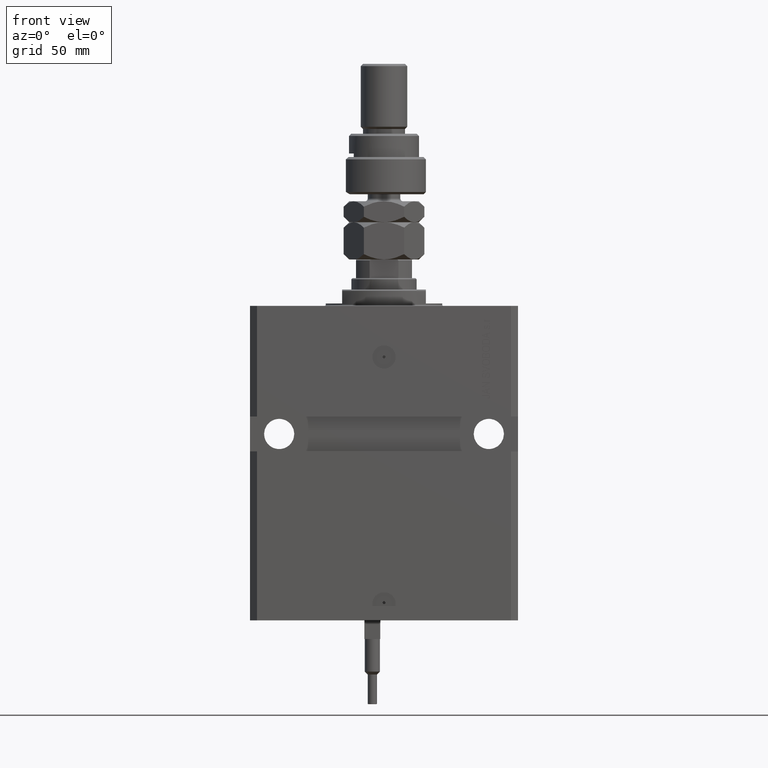
[diagram: clean part render]
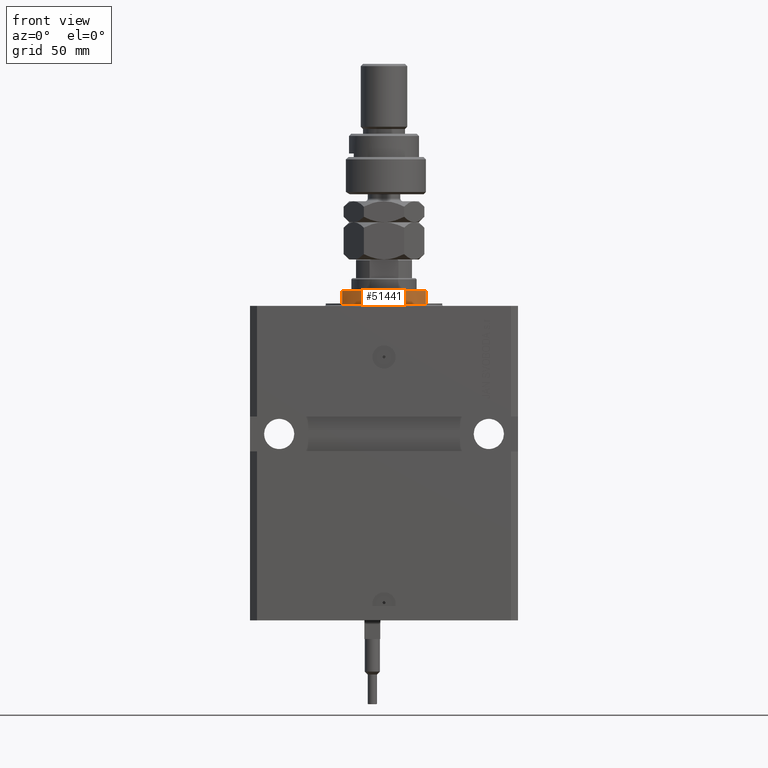
[diagram: same view with one face highlighted and labeled with its STEP entity id]
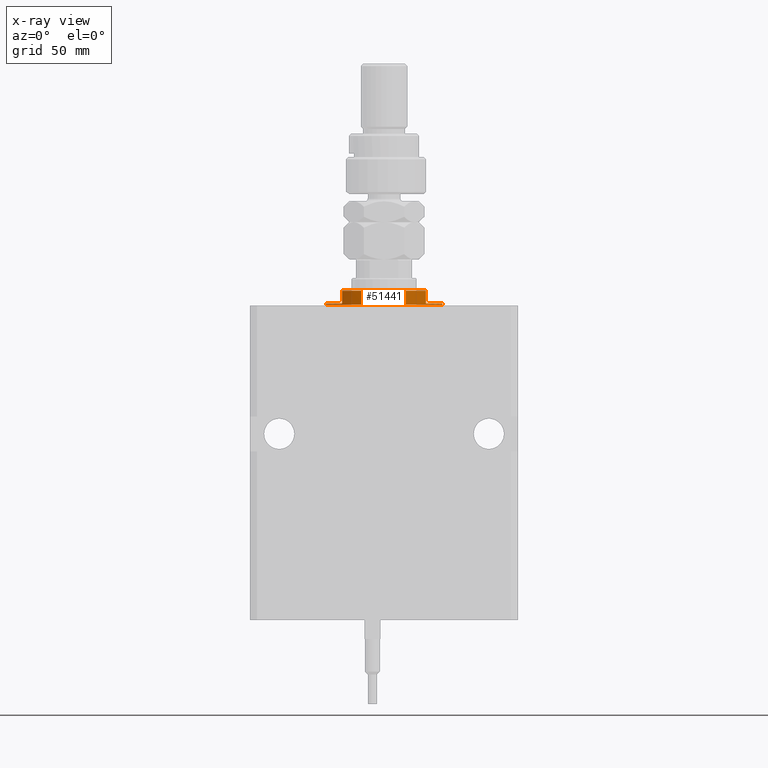
[diagram: x-ray of the same camera — body ghosted, the highlighted face saturated]
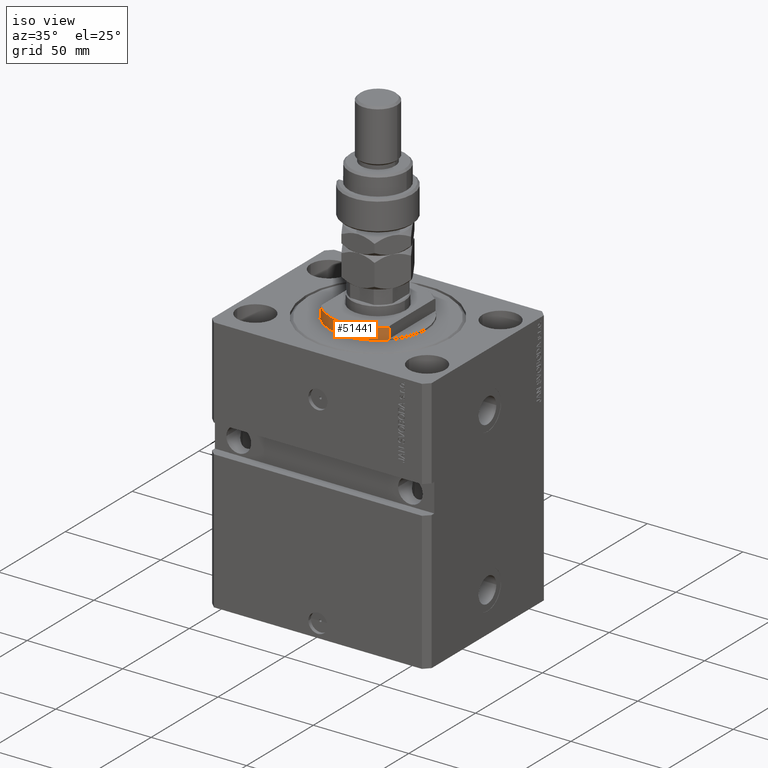
[diagram: same view with one face highlighted and labeled with its STEP entity id]
A machine part, front view. The second image highlights one B-rep face of the part: STEP entity #51441.
The next image is the same camera in x-ray: the body ghosted, the highlighted face saturated — about 0% of this face is hidden behind the body in this view.
A second angle (iso view) of the same face is appended — the face is thin or edge-on in the first view.
In plain terms, the highlighted cylindrical surface (partial cylindrical patch) has radius 25 mm, axis along (0, 0, -1).
Its self-contained STEP definition (entity closure, byte-faithful):
#1 = DIRECTION ( 'NONE',  ( -0.000000000000000000, -0.000000000000000000, 1.000000000000000000 ) ) ;
#267 = AXIS2_PLACEMENT_3D ( 'NONE', #8939, #33567, #25113 ) ;
#513 = LINE ( 'NONE', #39951, #21697 ) ;
#1359 = LINE ( 'NONE', #12744, #47036 ) ;
#4770 = CIRCLE ( 'NONE', #44500, 25.00000000000000000 ) ;
#5127 = FACE_OUTER_BOUND ( 'NONE', #33872, .T. ) ;
#5412 = ORIENTED_EDGE ( 'NONE', *, *, #36118, .F. ) ;
#5709 = CARTESIAN_POINT ( 'NONE',  ( 18.00000000000000000, -17.34935157289747920, -7.000000000000000000 ) ) ;
#6168 = EDGE_CURVE ( 'NONE', #50250, #43555, #513, .T. ) ;
#8939 = CARTESIAN_POINT ( 'NONE',  ( 0.000000000000000000, 0.000000000000000000, -0.4999999999999995559 ) ) ;
#9646 = AXIS2_PLACEMENT_3D ( 'NONE', #28460, #49052, #12559 ) ;
#11123 = CIRCLE ( 'NONE', #50811, 25.00000000000000000 ) ;
#12031 = CARTESIAN_POINT ( 'NONE',  ( 25.00000000000000000, 0.000000000000000000, -0.4999999999999995559 ) ) ;
#12559 = DIRECTION ( 'NONE',  ( 1.000000000000000000, 0.000000000000000000, 0.000000000000000000 ) ) ;
#12744 = CARTESIAN_POINT ( 'NONE',  ( -18.00000000000000000, -17.34935157289747920, -7.000000000000000000 ) ) ;
#13153 = VERTEX_POINT ( 'NONE', #27583 ) ;
#13424 = VECTOR ( 'NONE', #17882, 1000.000000000000000 ) ;
#13708 = VERTEX_POINT ( 'NONE', #18921 ) ;
#13859 = CARTESIAN_POINT ( 'NONE',  ( -18.00000000000000000, -17.34935157289747920, -1.000000000000000000 ) ) ;
#14608 = CIRCLE ( 'NONE', #267, 25.00000000000000000 ) ;
#15237 = ORIENTED_EDGE ( 'NONE', *, *, #24944, .F. ) ;
#16981 = CARTESIAN_POINT ( 'NONE',  ( 0.000000000000000000, 0.000000000000000000, -6.499999999999971578 ) ) ;
#17402 = VECTOR ( 'NONE', #41469, 1000.000000000000000 ) ;
#17882 = DIRECTION ( 'NONE',  ( 0.000000000000000000, 0.000000000000000000, -1.000000000000000000 ) ) ;
#18197 = ORIENTED_EDGE ( 'NONE', *, *, #34204, .F. ) ;
#18921 = CARTESIAN_POINT ( 'NONE',  ( 18.00000000000000000, -17.34935157289747920, -1.000000000000000000 ) ) ;
#20874 = CARTESIAN_POINT ( 'NONE',  ( -25.00000000000000000, 3.061616997868383043E-15, -7.000000000000000000 ) ) ;
#21076 = AXIS2_PLACEMENT_3D ( 'NONE', #51105, #42655, #50838 ) ;
#21697 = VECTOR ( 'NONE', #1, 1000.000000000000000 ) ;
#24868 = ORIENTED_EDGE ( 'NONE', *, *, #6168, .T. ) ;
#24944 = EDGE_CURVE ( 'NONE', #43477, #13153, #41218, .T. ) ;
#25113 = DIRECTION ( 'NONE',  ( 1.000000000000000000, 0.000000000000000000, 0.000000000000000000 ) ) ;
#27452 = VERTEX_POINT ( 'NONE', #13859 ) ;
#27583 = CARTESIAN_POINT ( 'NONE',  ( -25.00000000000000000, 3.061616997868383043E-15, -0.4999999999999995559 ) ) ;
#27682 = ORIENTED_EDGE ( 'NONE', *, *, #29346, .F. ) ;
#28460 = CARTESIAN_POINT ( 'NONE',  ( 0.000000000000000000, 0.000000000000000000, -7.000000000000000000 ) ) ;
#29346 = EDGE_CURVE ( 'NONE', #50250, #13708, #4770, .T. ) ;
#29413 = EDGE_CURVE ( 'NONE', #27452, #49028, #1359, .T. ) ;
#30136 = DIRECTION ( 'NONE',  ( 0.000000000000000000, 0.000000000000000000, 1.000000000000000000 ) ) ;
#30330 = DIRECTION ( 'NONE',  ( 0.000000000000000000, 0.000000000000000000, -1.000000000000000000 ) ) ;
#33567 = DIRECTION ( 'NONE',  ( -0.000000000000000000, -0.000000000000000000, -1.000000000000000000 ) ) ;
#33872 = EDGE_LOOP ( 'NONE', ( #15237, #5412, #48184, #45707, #18197, #27682, #24868, #45360 ) ) ;
#34204 = EDGE_CURVE ( 'NONE', #13708, #35175, #49889, .T. ) ;
#34564 = DIRECTION ( 'NONE',  ( -1.000000000000000000, 0.000000000000000000, 0.000000000000000000 ) ) ;
#35175 = VERTEX_POINT ( 'NONE', #49467 ) ;
#36118 = EDGE_CURVE ( 'NONE', #27452, #43477, #43036, .T. ) ;
#39860 = CARTESIAN_POINT ( 'NONE',  ( -18.00000000000000000, -17.34935157289747920, -6.499999999999969802 ) ) ;
#39951 = CARTESIAN_POINT ( 'NONE',  ( 25.00000000000000000, 0.000000000000000000, -7.000000000000000000 ) ) ;
#41218 = LINE ( 'NONE', #20874, #17402 ) ;
#41387 = CYLINDRICAL_SURFACE ( 'NONE', #9646, 25.00000000000000000 ) ;
#41469 = DIRECTION ( 'NONE',  ( -0.000000000000000000, -0.000000000000000000, 1.000000000000000000 ) ) ;
#42655 = DIRECTION ( 'NONE',  ( 0.000000000000000000, 0.000000000000000000, -1.000000000000000000 ) ) ;
#42930 = EDGE_CURVE ( 'NONE', #49028, #35175, #11123, .T. ) ;
#43010 = CARTESIAN_POINT ( 'NONE',  ( 0.000000000000000000, 0.000000000000000000, -1.000000000000000000 ) ) ;
#43036 = CIRCLE ( 'NONE', #21076, 25.00000000000000000 ) ;
#43477 = VERTEX_POINT ( 'NONE', #47492 ) ;
#43555 = VERTEX_POINT ( 'NONE', #12031 ) ;
#44500 = AXIS2_PLACEMENT_3D ( 'NONE', #43010, #30330, #34564 ) ;
#45017 = DIRECTION ( 'NONE',  ( 0.000000000000000000, 0.000000000000000000, -1.000000000000000000 ) ) ;
#45360 = ORIENTED_EDGE ( 'NONE', *, *, #48865, .T. ) ;
#45707 = ORIENTED_EDGE ( 'NONE', *, *, #42930, .T. ) ;
#46255 = DIRECTION ( 'NONE',  ( -1.000000000000000000, 0.000000000000000000, 0.000000000000000000 ) ) ;
#47036 = VECTOR ( 'NONE', #45017, 1000.000000000000000 ) ;
#47492 = CARTESIAN_POINT ( 'NONE',  ( -25.00000000000000000, 3.061616997868383043E-15, -1.000000000000000000 ) ) ;
#48184 = ORIENTED_EDGE ( 'NONE', *, *, #29413, .T. ) ;
#48865 = EDGE_CURVE ( 'NONE', #43555, #13153, #14608, .T. ) ;
#49028 = VERTEX_POINT ( 'NONE', #39860 ) ;
#49052 = DIRECTION ( 'NONE',  ( -0.000000000000000000, -0.000000000000000000, 1.000000000000000000 ) ) ;
#49467 = CARTESIAN_POINT ( 'NONE',  ( 18.00000000000000000, -17.34935157289747920, -6.499999999999971578 ) ) ;
#49889 = LINE ( 'NONE', #5709, #13424 ) ;
#50250 = VERTEX_POINT ( 'NONE', #50409 ) ;
#50409 = CARTESIAN_POINT ( 'NONE',  ( 25.00000000000000000, 0.000000000000000000, -1.000000000000000000 ) ) ;
#50811 = AXIS2_PLACEMENT_3D ( 'NONE', #16981, #30136, #46255 ) ;
#50838 = DIRECTION ( 'NONE',  ( -1.000000000000000000, 0.000000000000000000, 0.000000000000000000 ) ) ;
#51105 = CARTESIAN_POINT ( 'NONE',  ( 0.000000000000000000, 0.000000000000000000, -1.000000000000000000 ) ) ;
#51441 = ADVANCED_FACE ( 'NONE', ( #5127 ), #41387, .T. ) ;